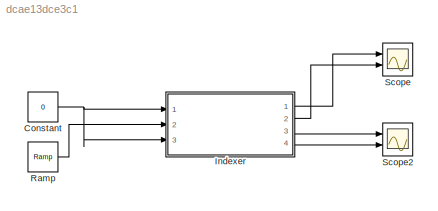
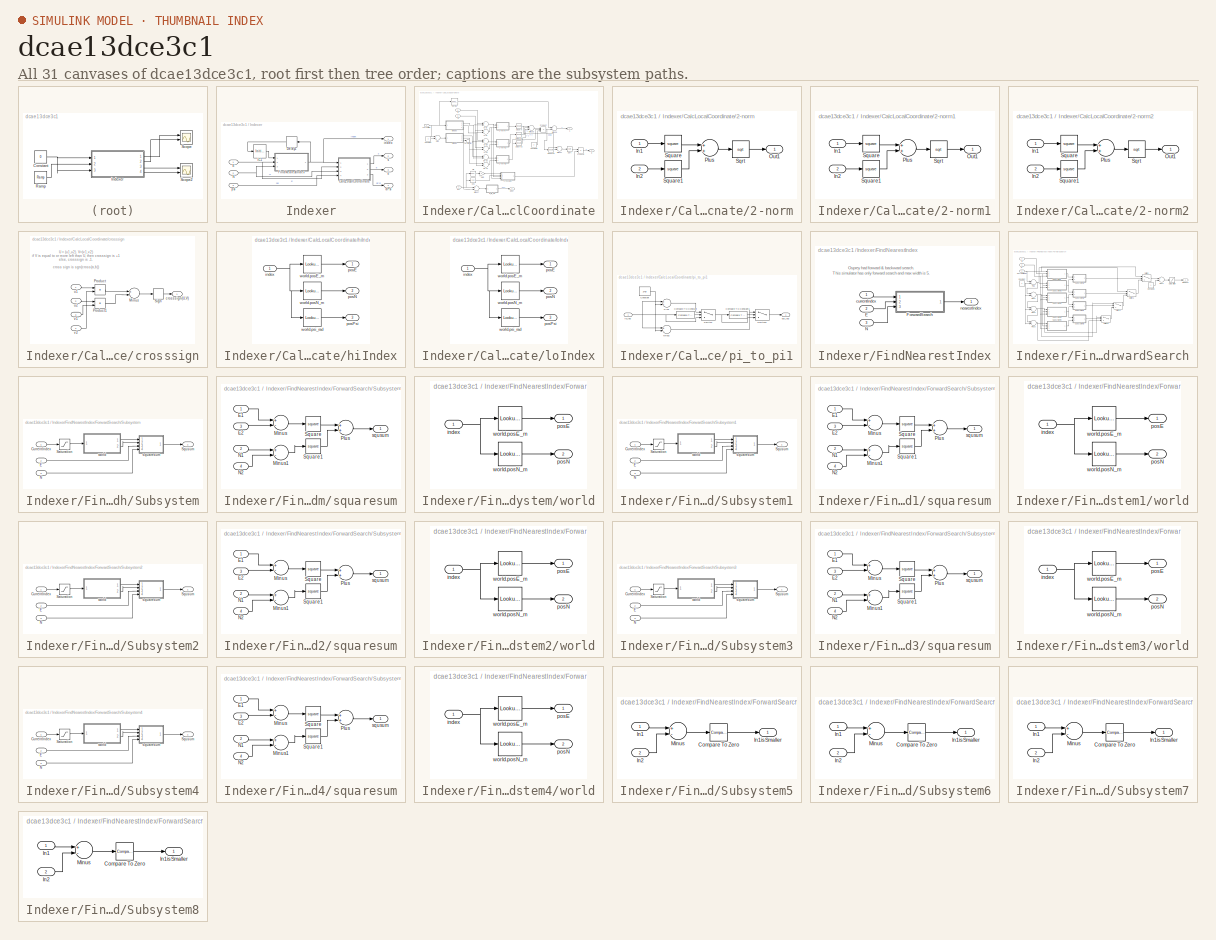
[diagram: thumbnail index - all 31 canvases of the model, root first then tree order]
MODEL slx_dcae13dce3c1
KIND model
CONFIG AbsTol = auto
CONFIG EnableMultiTasking = off
CONFIG FixedStep = 0.001
CONFIG MaxStep = auto
CONFIG MinStep = auto
CONFIG RelTol = 1e-3
CONFIG SampleTimeConstraint = Unconstrained
CONFIG Solver = ode1
CONFIG SolverName = ode1
CONFIG StartTime = 0.0
CONFIG StopTime = 10.0
BLOCK [Constant] Constant
  Value = 0
BLOCK [SubSystem] Indexer
  Ports = [3, 4]
  RequestExecContextInheritance = off
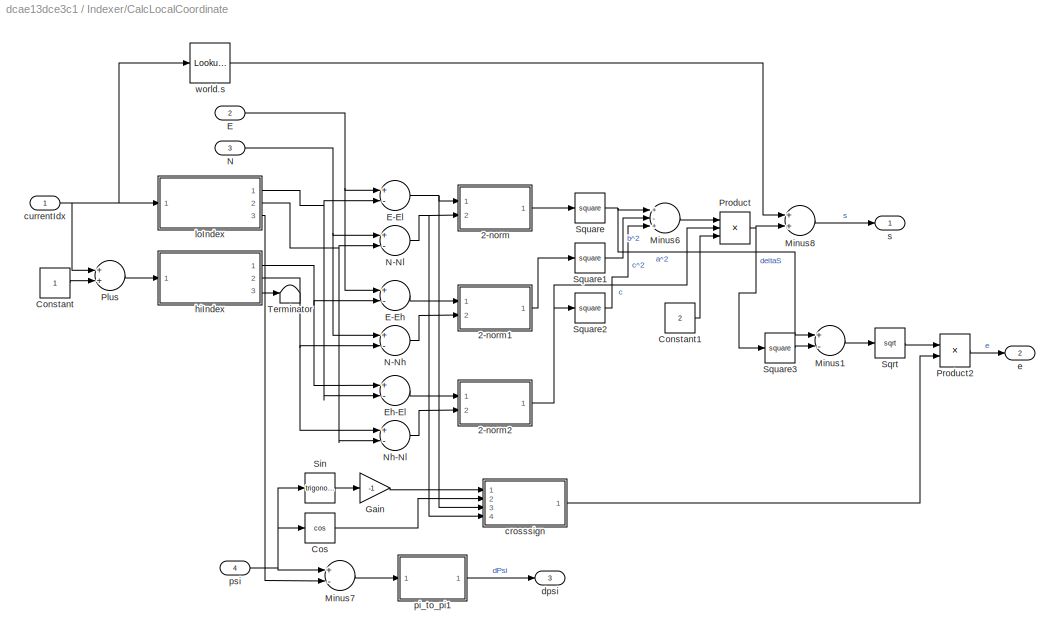
BLOCK [SubSystem] Indexer/CalcLocalCoordinate
  Ports = [4, 3]
  RequestExecContextInheritance = off
BLOCK [SubSystem] Indexer/CalcLocalCoordinate/2-norm
  Ports = [2, 1]
  RequestExecContextInheritance = off
BLOCK [Inport] Indexer/CalcLocalCoordinate/2-norm/In1
  IconDisplay = Port number
BLOCK [Inport] Indexer/CalcLocalCoordinate/2-norm/In2
  IconDisplay = Port number
  Port = 2
BLOCK [Outport] Indexer/CalcLocalCoordinate/2-norm/Out1
  IconDisplay = Port number
BLOCK [Sum] Indexer/CalcLocalCoordinate/2-norm/Plus
  InputSameDT = off
  OutDataTypeStr = Inherit: Inherit via internal rule
  Ports = [2, 1]
  SaturateOnIntegerOverflow = off
BLOCK [Sqrt] Indexer/CalcLocalCoordinate/2-norm/Sqrt
BLOCK [Math] Indexer/CalcLocalCoordinate/2-norm/Square
  Operator = square
  Ports = [1, 1]
BLOCK [Math] Indexer/CalcLocalCoordinate/2-norm/Square1
  Operator = square
  Ports = [1, 1]
BLOCK [SubSystem] Indexer/CalcLocalCoordinate/2-norm1
  Ports = [2, 1]
  RequestExecContextInheritance = off
BLOCK [Inport] Indexer/CalcLocalCoordinate/2-norm1/In1
  IconDisplay = Port number
BLOCK [Inport] Indexer/CalcLocalCoordinate/2-norm1/In2
  IconDisplay = Port number
  Port = 2
BLOCK [Outport] Indexer/CalcLocalCoordinate/2-norm1/Out1
  IconDisplay = Port number
BLOCK [Sum] Indexer/CalcLocalCoordinate/2-norm1/Plus
  InputSameDT = off
  OutDataTypeStr = Inherit: Inherit via internal rule
  Ports = [2, 1]
  SaturateOnIntegerOverflow = off
BLOCK [Sqrt] Indexer/CalcLocalCoordinate/2-norm1/Sqrt
BLOCK [Math] Indexer/CalcLocalCoordinate/2-norm1/Square
  Operator = square
  Ports = [1, 1]
BLOCK [Math] Indexer/CalcLocalCoordinate/2-norm1/Square1
  Operator = square
  Ports = [1, 1]
BLOCK [SubSystem] Indexer/CalcLocalCoordinate/2-norm2
  Ports = [2, 1]
  RequestExecContextInheritance = off
BLOCK [Inport] Indexer/CalcLocalCoordinate/2-norm2/In1
  IconDisplay = Port number
BLOCK [Inport] Indexer/CalcLocalCoordinate/2-norm2/In2
  IconDisplay = Port number
  Port = 2
BLOCK [Outport] Indexer/CalcLocalCoordinate/2-norm2/Out1
  IconDisplay = Port number
BLOCK [Sum] Indexer/CalcLocalCoordinate/2-norm2/Plus
  InputSameDT = off
  OutDataTypeStr = Inherit: Inherit via internal rule
  Ports = [2, 1]
  SaturateOnIntegerOverflow = off
BLOCK [Sqrt] Indexer/CalcLocalCoordinate/2-norm2/Sqrt
BLOCK [Math] Indexer/CalcLocalCoordinate/2-norm2/Square
  Operator = square
  Ports = [1, 1]
BLOCK [Math] Indexer/CalcLocalCoordinate/2-norm2/Square1
  Operator = square
  Ports = [1, 1]
BLOCK [Constant] Indexer/CalcLocalCoordinate/Constant
BLOCK [Constant] Indexer/CalcLocalCoordinate/Constant1
  Value = 2
BLOCK [Trigonometry] Indexer/CalcLocalCoordinate/Cos
  Operator = cos
  Ports = [1, 1]
BLOCK [Inport] Indexer/CalcLocalCoordinate/E
  IconDisplay = Port number
  Port = 2
BLOCK [Sum] Indexer/CalcLocalCoordinate/E-Eh
  InputSameDT = off
  Inputs = +-
  OutDataTypeStr = Inherit: Inherit via internal rule
  Ports = [2, 1]
  SaturateOnIntegerOverflow = off
BLOCK [Sum] Indexer/CalcLocalCoordinate/E-El
  InputSameDT = off
  Inputs = +-
  OutDataTypeStr = Inherit: Inherit via internal rule
  Ports = [2, 1]
  SaturateOnIntegerOverflow = off
BLOCK [Sum] Indexer/CalcLocalCoordinate/Eh-El
  InputSameDT = off
  Inputs = +-
  OutDataTypeStr = Inherit: Inherit via internal rule
  Ports = [2, 1]
  SaturateOnIntegerOverflow = off
BLOCK [Gain] Indexer/CalcLocalCoordinate/Gain
  Gain = -1
  OutDataTypeStr = Inherit: Inherit via internal rule
  ParamDataTypeStr = Inherit: Inherit via internal rule
  SaturateOnIntegerOverflow = off
BLOCK [Sum] Indexer/CalcLocalCoordinate/Minus1
  InputSameDT = off
  Inputs = +-
  OutDataTypeStr = Inherit: Inherit via internal rule
  Ports = [2, 1]
  SaturateOnIntegerOverflow = off
BLOCK [Sum] Indexer/CalcLocalCoordinate/Minus6
  InputSameDT = off
  Inputs = +-+
  OutDataTypeStr = Inherit: Inherit via internal rule
  Ports = [3, 1]
  SaturateOnIntegerOverflow = off
BLOCK [Sum] Indexer/CalcLocalCoordinate/Minus7
  InputSameDT = off
  Inputs = +-
  OutDataTypeStr = Inherit: Inherit via internal rule
  Ports = [2, 1]
  SaturateOnIntegerOverflow = off
BLOCK [Sum] Indexer/CalcLocalCoordinate/Minus8
  InputSameDT = off
  OutDataTypeStr = Inherit: Inherit via internal rule
  Ports = [2, 1]
  SaturateOnIntegerOverflow = off
BLOCK [Inport] Indexer/CalcLocalCoordinate/N
  IconDisplay = Port number
  Port = 3
BLOCK [Sum] Indexer/CalcLocalCoordinate/N-Nh
  InputSameDT = off
  Inputs = +-
  OutDataTypeStr = Inherit: Inherit via internal rule
  Ports = [2, 1]
  SaturateOnIntegerOverflow = off
BLOCK [Sum] Indexer/CalcLocalCoordinate/N-Nl
  InputSameDT = off
  Inputs = +-
  OutDataTypeStr = Inherit: Inherit via internal rule
  Ports = [2, 1]
  SaturateOnIntegerOverflow = off
BLOCK [Sum] Indexer/CalcLocalCoordinate/Nh-Nl
  InputSameDT = off
  Inputs = +-
  OutDataTypeStr = Inherit: Inherit via internal rule
  Ports = [2, 1]
  SaturateOnIntegerOverflow = off
BLOCK [Sum] Indexer/CalcLocalCoordinate/Plus
  InputSameDT = off
  OutDataTypeStr = Inherit: Inherit via internal rule
  Ports = [2, 1]
  SaturateOnIntegerOverflow = off
BLOCK [Product] Indexer/CalcLocalCoordinate/Product
  InputSameDT = off
  Inputs = *//
  OutDataTypeStr = Inherit: Inherit via internal rule
  Ports = [3, 1]
  RndMeth = Floor
  SaturateOnIntegerOverflow = off
BLOCK [Product] Indexer/CalcLocalCoordinate/Product2
  InputSameDT = off
  OutDataTypeStr = Inherit: Inherit via internal rule
  Ports = [2, 1]
  RndMeth = Floor
  SaturateOnIntegerOverflow = off
BLOCK [Trigonometry] Indexer/CalcLocalCoordinate/Sin
  Ports = [1, 1]
BLOCK [Sqrt] Indexer/CalcLocalCoordinate/Sqrt
BLOCK [Math] Indexer/CalcLocalCoordinate/Square
  Operator = square
  Ports = [1, 1]
BLOCK [Math] Indexer/CalcLocalCoordinate/Square1
  Operator = square
  Ports = [1, 1]
BLOCK [Math] Indexer/CalcLocalCoordinate/Square2
  Operator = square
  Ports = [1, 1]
BLOCK [Math] Indexer/CalcLocalCoordinate/Square3
  Operator = square
  Ports = [1, 1]
BLOCK [Terminator] Indexer/CalcLocalCoordinate/Terminator
BLOCK [SubSystem] Indexer/CalcLocalCoordinate/crosssign
  Ports = [4, 1]
  RequestExecContextInheritance = off
BLOCK [Sum] Indexer/CalcLocalCoordinate/crosssign/Minus
  InputSameDT = off
  Inputs = +-
  OutDataTypeStr = Inherit: Inherit via internal rule
  Ports = [2, 1]
  SaturateOnIntegerOverflow = off
BLOCK [Product] Indexer/CalcLocalCoordinate/crosssign/Product
  InputSameDT = off
  OutDataTypeStr = Inherit: Inherit via internal rule
  Ports = [2, 1]
  RndMeth = Floor
  SaturateOnIntegerOverflow = off
BLOCK [Product] Indexer/CalcLocalCoordinate/crosssign/Product1
  InputSameDT = off
  OutDataTypeStr = Inherit: Inherit via internal rule
  Ports = [2, 1]
  RndMeth = Floor
  SaturateOnIntegerOverflow = off
BLOCK [Signum] Indexer/CalcLocalCoordinate/crosssign/Sign
BLOCK [Outport] Indexer/CalcLocalCoordinate/crosssign/crosssign(U,V)
  IconDisplay = Port number
BLOCK [Inport] Indexer/CalcLocalCoordinate/crosssign/u1
  IconDisplay = Port number
BLOCK [Inport] Indexer/CalcLocalCoordinate/crosssign/u2
  IconDisplay = Port number
  Port = 2
BLOCK [Inport] Indexer/CalcLocalCoordinate/crosssign/v1
  IconDisplay = Port number
  Port = 3
BLOCK [Inport] Indexer/CalcLocalCoordinate/crosssign/v2
  IconDisplay = Port number
  Port = 4
BLOCK [Inport] Indexer/CalcLocalCoordinate/currentIdx
  IconDisplay = Port number
BLOCK [Outport] Indexer/CalcLocalCoordinate/dpsi
  IconDisplay = Port number
  Port = 3
BLOCK [Outport] Indexer/CalcLocalCoordinate/e
  IconDisplay = Port number
  Port = 2
BLOCK [SubSystem] Indexer/CalcLocalCoordinate/hiIndex
  Ports = [1, 3]
  RequestExecContextInheritance = off
BLOCK [Inport] Indexer/CalcLocalCoordinate/hiIndex/index
  IconDisplay = Port number
BLOCK [Outport] Indexer/CalcLocalCoordinate/hiIndex/posE
  IconDisplay = Port number
BLOCK [Outport] Indexer/CalcLocalCoordinate/hiIndex/posN
  IconDisplay = Port number
  Port = 2
BLOCK [Outport] Indexer/CalcLocalCoordinate/hiIndex/posPsi
  IconDisplay = Port number
  Port = 3
BLOCK [Lookup_n-D] Indexer/CalcLocalCoordinate/hiIndex/world.posE_m
  BreakpointsForDimension1 = world.index
  InternalRulePriority = Speed
  NumberOfTableDimensions = 1
  Ports = [1, 1]
  RndMeth = Simplest
  Table = world.posE_m
BLOCK [Lookup_n-D] Indexer/CalcLocalCoordinate/hiIndex/world.posN_m
  BreakpointsForDimension1 = world.index
  InternalRulePriority = Speed
  NumberOfTableDimensions = 1
  Ports = [1, 1]
  RndMeth = Simplest
  Table = world.posN_m
BLOCK [Lookup_n-D] Indexer/CalcLocalCoordinate/hiIndex/world.psi_rad
  BreakpointsForDimension1 = world.index
  InternalRulePriority = Speed
  NumberOfTableDimensions = 1
  Ports = [1, 1]
  RndMeth = Simplest
  Table = world.psi_rad
BLOCK [SubSystem] Indexer/CalcLocalCoordinate/loIndex
  Ports = [1, 3]
  RequestExecContextInheritance = off
BLOCK [Inport] Indexer/CalcLocalCoordinate/loIndex/index
  IconDisplay = Port number
BLOCK [Outport] Indexer/CalcLocalCoordinate/loIndex/posE
  IconDisplay = Port number
BLOCK [Outport] Indexer/CalcLocalCoordinate/loIndex/posN
  IconDisplay = Port number
  Port = 2
BLOCK [Outport] Indexer/CalcLocalCoordinate/loIndex/posPsi
  IconDisplay = Port number
  Port = 3
BLOCK [Lookup_n-D] Indexer/CalcLocalCoordinate/loIndex/world.posE_m
  BreakpointsForDimension1 = world.index
  InternalRulePriority = Speed
  NumberOfTableDimensions = 1
  Ports = [1, 1]
  RndMeth = Simplest
  Table = world.posE_m
BLOCK [Lookup_n-D] Indexer/CalcLocalCoordinate/loIndex/world.posN_m
  BreakpointsForDimension1 = world.index
  InternalRulePriority = Speed
  NumberOfTableDimensions = 1
  Ports = [1, 1]
  RndMeth = Simplest
  Table = world.posN_m
BLOCK [Lookup_n-D] Indexer/CalcLocalCoordinate/loIndex/world.psi_rad
  BreakpointsForDimension1 = world.index
  InternalRulePriority = Speed
  NumberOfTableDimensions = 1
  Ports = [1, 1]
  RndMeth = Simplest
  Table = world.psi_rad
BLOCK [SubSystem] Indexer/CalcLocalCoordinate/pi_to_pi1
  Ports = [1, 1]
  RequestExecContextInheritance = off
BLOCK [Reference] Indexer/CalcLocalCoordinate/pi_to_pi1/Compare To Constant  REF=simulink/Logic and Bit
Operations/Compare
To Constant
  Ports = [1, 1]
  SourceBlock = simulink/Logic and Bit\nOperations/Compare\nTo Constant
  SourceProductBaseCode = SL
  SourceProductName = Simulink
  SourceType = Compare To Constant
BLOCK [Reference] Indexer/CalcLocalCoordinate/pi_to_pi1/Compare To Constant1  REF=simulink/Logic and Bit
Operations/Compare
To Constant
  Ports = [1, 1]
  SourceBlock = simulink/Logic and Bit\nOperations/Compare\nTo Constant
  SourceProductBaseCode = SL
  SourceProductName = Simulink
  SourceType = Compare To Constant
BLOCK [Constant] Indexer/CalcLocalCoordinate/pi_to_pi1/Constant
  Value = 2*pi
BLOCK [Sum] Indexer/CalcLocalCoordinate/pi_to_pi1/Minus
  InputSameDT = off
  Inputs = +-
  OutDataTypeStr = Inherit: Inherit via internal rule
  Ports = [2, 1]
  SaturateOnIntegerOverflow = off
BLOCK [Sum] Indexer/CalcLocalCoordinate/pi_to_pi1/Plus
  InputSameDT = off
  OutDataTypeStr = Inherit: Inherit via internal rule
  Ports = [2, 1]
  SaturateOnIntegerOverflow = off
BLOCK [Switch] Indexer/CalcLocalCoordinate/pi_to_pi1/Switch
  Criteria = u2 > Threshold
  InputSameDT = off
  SaturateOnIntegerOverflow = off
BLOCK [Switch] Indexer/CalcLocalCoordinate/pi_to_pi1/Switch1
  Criteria = u2 > Threshold
  InputSameDT = off
  SaturateOnIntegerOverflow = off
BLOCK [Inport] Indexer/CalcLocalCoordinate/pi_to_pi1/in_rad
  IconDisplay = Port number
BLOCK [Outport] Indexer/CalcLocalCoordinate/pi_to_pi1/out_rad
  IconDisplay = Port number
BLOCK [Inport] Indexer/CalcLocalCoordinate/psi
  IconDisplay = Port number
  Port = 4
BLOCK [Outport] Indexer/CalcLocalCoordinate/s
  IconDisplay = Port number
BLOCK [Lookup_n-D] Indexer/CalcLocalCoordinate/world.s
  BreakpointsForDimension1 = world.index
  InternalRulePriority = Speed
  NumberOfTableDimensions = 1
  Ports = [1, 1]
  RndMeth = Simplest
  Table = world.s_m
BLOCK [Delay] Indexer/Delay1
  DelayLength = 1
  InputPortMap = u0
  Ports = [1, 1]
BLOCK [Inport] Indexer/E
  IconDisplay = Port number
BLOCK [SubSystem] Indexer/FindNearestIndex
  Ports = [3, 1]
  RequestExecContextInheritance = off
BLOCK [Inport] Indexer/FindNearestIndex/E
  IconDisplay = Port number
  Port = 2
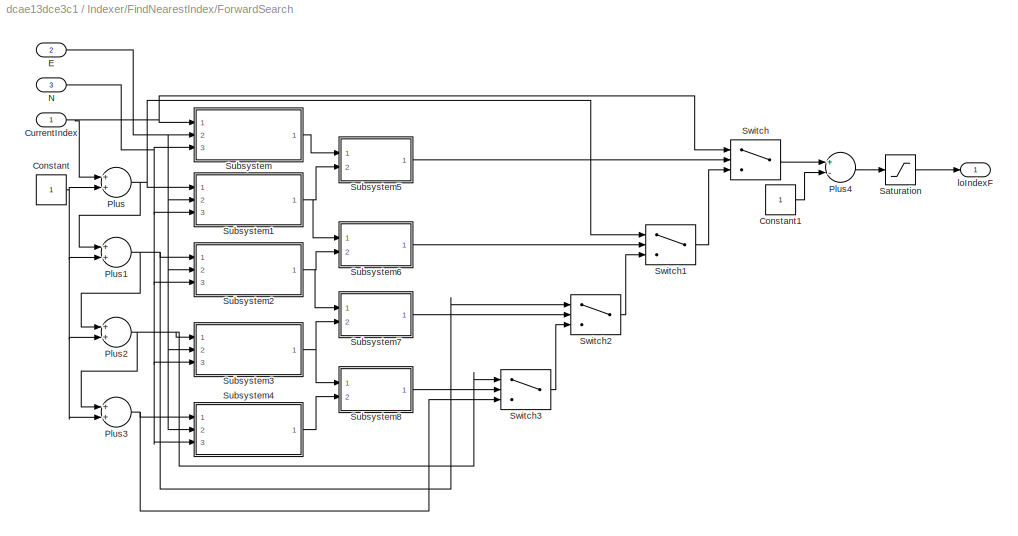
BLOCK [SubSystem] Indexer/FindNearestIndex/ForwardSearch
  Ports = [3, 1]
  RequestExecContextInheritance = off
  TreatAsAtomicUnit = on
BLOCK [Constant] Indexer/FindNearestIndex/ForwardSearch/Constant
BLOCK [Constant] Indexer/FindNearestIndex/ForwardSearch/Constant1
BLOCK [Inport] Indexer/FindNearestIndex/ForwardSearch/CurrentIndex
  IconDisplay = Port number
BLOCK [Inport] Indexer/FindNearestIndex/ForwardSearch/E
  IconDisplay = Port number
  Port = 2
BLOCK [Inport] Indexer/FindNearestIndex/ForwardSearch/N
  IconDisplay = Port number
  Port = 3
BLOCK [Sum] Indexer/FindNearestIndex/ForwardSearch/Plus
  InputSameDT = off
  OutDataTypeStr = Inherit: Inherit via internal rule
  Ports = [2, 1]
  SaturateOnIntegerOverflow = off
BLOCK [Sum] Indexer/FindNearestIndex/ForwardSearch/Plus1
  InputSameDT = off
  OutDataTypeStr = Inherit: Inherit via internal rule
  Ports = [2, 1]
  SaturateOnIntegerOverflow = off
BLOCK [Sum] Indexer/FindNearestIndex/ForwardSearch/Plus2
  InputSameDT = off
  OutDataTypeStr = Inherit: Inherit via internal rule
  Ports = [2, 1]
  SaturateOnIntegerOverflow = off
BLOCK [Sum] Indexer/FindNearestIndex/ForwardSearch/Plus3
  InputSameDT = off
  OutDataTypeStr = Inherit: Inherit via internal rule
  Ports = [2, 1]
  SaturateOnIntegerOverflow = off
BLOCK [Sum] Indexer/FindNearestIndex/ForwardSearch/Plus4
  InputSameDT = off
  Inputs = +-
  OutDataTypeStr = Inherit: Inherit via internal rule
  Ports = [2, 1]
  SaturateOnIntegerOverflow = off
BLOCK [Saturate] Indexer/FindNearestIndex/ForwardSearch/Saturation
  InputPortMap = u0
  LowerLimit = 1
  Ports = [1, 1]
  UpperLimit = world.maxIndex
BLOCK [SubSystem] Indexer/FindNearestIndex/ForwardSearch/Subsystem
  Ports = [3, 1]
  RequestExecContextInheritance = off
BLOCK [Inport] Indexer/FindNearestIndex/ForwardSearch/Subsystem/CurrentIndex
  IconDisplay = Port number
BLOCK [Inport] Indexer/FindNearestIndex/ForwardSearch/Subsystem/E
  IconDisplay = Port number
  Port = 2
BLOCK [Inport] Indexer/FindNearestIndex/ForwardSearch/Subsystem/N
  IconDisplay = Port number
  Port = 3
BLOCK [Saturate] Indexer/FindNearestIndex/ForwardSearch/Subsystem/Saturation
  InputPortMap = u0
  LowerLimit = 1
  Ports = [1, 1]
  UpperLimit = world.maxIndex
BLOCK [Outport] Indexer/FindNearestIndex/ForwardSearch/Subsystem/Squsum
  IconDisplay = Port number
BLOCK [SubSystem] Indexer/FindNearestIndex/ForwardSearch/Subsystem/squaresum
  Ports = [4, 1]
  RequestExecContextInheritance = off
BLOCK [Inport] Indexer/FindNearestIndex/ForwardSearch/Subsystem/squaresum/E1
  IconDisplay = Port number
BLOCK [Inport] Indexer/FindNearestIndex/ForwardSearch/Subsystem/squaresum/E2
  IconDisplay = Port number
  Port = 3
BLOCK [Sum] Indexer/FindNearestIndex/ForwardSearch/Subsystem/squaresum/Minus
  InputSameDT = off
  Inputs = +-
  OutDataTypeStr = Inherit: Inherit via internal rule
  Ports = [2, 1]
  SaturateOnIntegerOverflow = off
BLOCK [Sum] Indexer/FindNearestIndex/ForwardSearch/Subsystem/squaresum/Minus1
  InputSameDT = off
  Inputs = +-
  OutDataTypeStr = Inherit: Inherit via internal rule
  Ports = [2, 1]
  SaturateOnIntegerOverflow = off
BLOCK [Inport] Indexer/FindNearestIndex/ForwardSearch/Subsystem/squaresum/N1
  IconDisplay = Port number
  Port = 2
BLOCK [Inport] Indexer/FindNearestIndex/ForwardSearch/Subsystem/squaresum/N2
  IconDisplay = Port number
  Port = 4
BLOCK [Sum] Indexer/FindNearestIndex/ForwardSearch/Subsystem/squaresum/Plus
  InputSameDT = off
  OutDataTypeStr = Inherit: Inherit via internal rule
  Ports = [2, 1]
  SaturateOnIntegerOverflow = off
BLOCK [Math] Indexer/FindNearestIndex/ForwardSearch/Subsystem/squaresum/Square
  Operator = square
  Ports = [1, 1]
BLOCK [Math] Indexer/FindNearestIndex/ForwardSearch/Subsystem/squaresum/Square1
  Operator = square
  Ports = [1, 1]
BLOCK [Outport] Indexer/FindNearestIndex/ForwardSearch/Subsystem/squaresum/squsum
  IconDisplay = Port number
BLOCK [SubSystem] Indexer/FindNearestIndex/ForwardSearch/Subsystem/world
  Ports = [1, 2]
  RequestExecContextInheritance = off
BLOCK [Inport] Indexer/FindNearestIndex/ForwardSearch/Subsystem/world/index
  IconDisplay = Port number
BLOCK [Outport] Indexer/FindNearestIndex/ForwardSearch/Subsystem/world/posE
  IconDisplay = Port number
BLOCK [Outport] Indexer/FindNearestIndex/ForwardSearch/Subsystem/world/posN
  IconDisplay = Port number
  Port = 2
BLOCK [Lookup_n-D] Indexer/FindNearestIndex/ForwardSearch/Subsystem/world/world.posE_m
  BreakpointsForDimension1 = world.index
  InternalRulePriority = Speed
  NumberOfTableDimensions = 1
  Ports = [1, 1]
  RndMeth = Simplest
  Table = world.posE_m
BLOCK [Lookup_n-D] Indexer/FindNearestIndex/ForwardSearch/Subsystem/world/world.posN_m
  BreakpointsForDimension1 = world.index
  InternalRulePriority = Speed
  NumberOfTableDimensions = 1
  Ports = [1, 1]
  RndMeth = Simplest
  Table = world.posN_m
BLOCK [SubSystem] Indexer/FindNearestIndex/ForwardSearch/Subsystem1
  Ports = [3, 1]
  RequestExecContextInheritance = off
BLOCK [Inport] Indexer/FindNearestIndex/ForwardSearch/Subsystem1/CurrentIndex
  IconDisplay = Port number
BLOCK [Inport] Indexer/FindNearestIndex/ForwardSearch/Subsystem1/E
  IconDisplay = Port number
  Port = 2
BLOCK [Inport] Indexer/FindNearestIndex/ForwardSearch/Subsystem1/N
  IconDisplay = Port number
  Port = 3
BLOCK [Saturate] Indexer/FindNearestIndex/ForwardSearch/Subsystem1/Saturation
  InputPortMap = u0
  LowerLimit = 1
  Ports = [1, 1]
  UpperLimit = world.maxIndex
BLOCK [Outport] Indexer/FindNearestIndex/ForwardSearch/Subsystem1/Squsum
  IconDisplay = Port number
BLOCK [SubSystem] Indexer/FindNearestIndex/ForwardSearch/Subsystem1/squaresum
  Ports = [4, 1]
  RequestExecContextInheritance = off
BLOCK [Inport] Indexer/FindNearestIndex/ForwardSearch/Subsystem1/squaresum/E1
  IconDisplay = Port number
BLOCK [Inport] Indexer/FindNearestIndex/ForwardSearch/Subsystem1/squaresum/E2
  IconDisplay = Port number
  Port = 3
BLOCK [Sum] Indexer/FindNearestIndex/ForwardSearch/Subsystem1/squaresum/Minus
  InputSameDT = off
  Inputs = +-
  OutDataTypeStr = Inherit: Inherit via internal rule
  Ports = [2, 1]
  SaturateOnIntegerOverflow = off
BLOCK [Sum] Indexer/FindNearestIndex/ForwardSearch/Subsystem1/squaresum/Minus1
  InputSameDT = off
  Inputs = +-
  OutDataTypeStr = Inherit: Inherit via internal rule
  Ports = [2, 1]
  SaturateOnIntegerOverflow = off
BLOCK [Inport] Indexer/FindNearestIndex/ForwardSearch/Subsystem1/squaresum/N1
  IconDisplay = Port number
  Port = 2
BLOCK [Inport] Indexer/FindNearestIndex/ForwardSearch/Subsystem1/squaresum/N2
  IconDisplay = Port number
  Port = 4
BLOCK [Sum] Indexer/FindNearestIndex/ForwardSearch/Subsystem1/squaresum/Plus
  InputSameDT = off
  OutDataTypeStr = Inherit: Inherit via internal rule
  Ports = [2, 1]
  SaturateOnIntegerOverflow = off
BLOCK [Math] Indexer/FindNearestIndex/ForwardSearch/Subsystem1/squaresum/Square
  Operator = square
  Ports = [1, 1]
BLOCK [Math] Indexer/FindNearestIndex/ForwardSearch/Subsystem1/squaresum/Square1
  Operator = square
  Ports = [1, 1]
BLOCK [Outport] Indexer/FindNearestIndex/ForwardSearch/Subsystem1/squaresum/squsum
  IconDisplay = Port number
BLOCK [SubSystem] Indexer/FindNearestIndex/ForwardSearch/Subsystem1/world
  Ports = [1, 2]
  RequestExecContextInheritance = off
BLOCK [Inport] Indexer/FindNearestIndex/ForwardSearch/Subsystem1/world/index
  IconDisplay = Port number
BLOCK [Outport] Indexer/FindNearestIndex/ForwardSearch/Subsystem1/world/posE
  IconDisplay = Port number
BLOCK [Outport] Indexer/FindNearestIndex/ForwardSearch/Subsystem1/world/posN
  IconDisplay = Port number
  Port = 2
BLOCK [Lookup_n-D] Indexer/FindNearestIndex/ForwardSearch/Subsystem1/world/world.posE_m
  BreakpointsForDimension1 = world.index
  InternalRulePriority = Speed
  NumberOfTableDimensions = 1
  Ports = [1, 1]
  RndMeth = Simplest
  Table = world.posE_m
BLOCK [Lookup_n-D] Indexer/FindNearestIndex/ForwardSearch/Subsystem1/world/world.posN_m
  BreakpointsForDimension1 = world.index
  InternalRulePriority = Speed
  NumberOfTableDimensions = 1
  Ports = [1, 1]
  RndMeth = Simplest
  Table = world.posN_m
BLOCK [SubSystem] Indexer/FindNearestIndex/ForwardSearch/Subsystem2
  Ports = [3, 1]
  RequestExecContextInheritance = off
BLOCK [Inport] Indexer/FindNearestIndex/ForwardSearch/Subsystem2/CurrentIndex
  IconDisplay = Port number
BLOCK [Inport] Indexer/FindNearestIndex/ForwardSearch/Subsystem2/E
  IconDisplay = Port number
  Port = 2
BLOCK [Inport] Indexer/FindNearestIndex/ForwardSearch/Subsystem2/N
  IconDisplay = Port number
  Port = 3
BLOCK [Saturate] Indexer/FindNearestIndex/ForwardSearch/Subsystem2/Saturation
  InputPortMap = u0
  LowerLimit = 1
  Ports = [1, 1]
  UpperLimit = world.maxIndex
BLOCK [Outport] Indexer/FindNearestIndex/ForwardSearch/Subsystem2/Squsum
  IconDisplay = Port number
BLOCK [SubSystem] Indexer/FindNearestIndex/ForwardSearch/Subsystem2/squaresum
  Ports = [4, 1]
  RequestExecContextInheritance = off
BLOCK [Inport] Indexer/FindNearestIndex/ForwardSearch/Subsystem2/squaresum/E1
  IconDisplay = Port number
BLOCK [Inport] Indexer/FindNearestIndex/ForwardSearch/Subsystem2/squaresum/E2
  IconDisplay = Port number
  Port = 3
BLOCK [Sum] Indexer/FindNearestIndex/ForwardSearch/Subsystem2/squaresum/Minus
  InputSameDT = off
  Inputs = +-
  OutDataTypeStr = Inherit: Inherit via internal rule
  Ports = [2, 1]
  SaturateOnIntegerOverflow = off
BLOCK [Sum] Indexer/FindNearestIndex/ForwardSearch/Subsystem2/squaresum/Minus1
  InputSameDT = off
  Inputs = +-
  OutDataTypeStr = Inherit: Inherit via internal rule
  Ports = [2, 1]
  SaturateOnIntegerOverflow = off
BLOCK [Inport] Indexer/FindNearestIndex/ForwardSearch/Subsystem2/squaresum/N1
  IconDisplay = Port number
  Port = 2
BLOCK [Inport] Indexer/FindNearestIndex/ForwardSearch/Subsystem2/squaresum/N2
  IconDisplay = Port number
  Port = 4
BLOCK [Sum] Indexer/FindNearestIndex/ForwardSearch/Subsystem2/squaresum/Plus
  InputSameDT = off
  OutDataTypeStr = Inherit: Inherit via internal rule
  Ports = [2, 1]
  SaturateOnIntegerOverflow = off
BLOCK [Math] Indexer/FindNearestIndex/ForwardSearch/Subsystem2/squaresum/Square
  Operator = square
  Ports = [1, 1]
BLOCK [Math] Indexer/FindNearestIndex/ForwardSearch/Subsystem2/squaresum/Square1
  Operator = square
  Ports = [1, 1]
BLOCK [Outport] Indexer/FindNearestIndex/ForwardSearch/Subsystem2/squaresum/squsum
  IconDisplay = Port number
BLOCK [SubSystem] Indexer/FindNearestIndex/ForwardSearch/Subsystem2/world
  Ports = [1, 2]
  RequestExecContextInheritance = off
BLOCK [Inport] Indexer/FindNearestIndex/ForwardSearch/Subsystem2/world/index
  IconDisplay = Port number
BLOCK [Outport] Indexer/FindNearestIndex/ForwardSearch/Subsystem2/world/posE
  IconDisplay = Port number
BLOCK [Outport] Indexer/FindNearestIndex/ForwardSearch/Subsystem2/world/posN
  IconDisplay = Port number
  Port = 2
BLOCK [Lookup_n-D] Indexer/FindNearestIndex/ForwardSearch/Subsystem2/world/world.posE_m
  BreakpointsForDimension1 = world.index
  InternalRulePriority = Speed
  NumberOfTableDimensions = 1
  Ports = [1, 1]
  RndMeth = Simplest
  Table = world.posE_m
BLOCK [Lookup_n-D] Indexer/FindNearestIndex/ForwardSearch/Subsystem2/world/world.posN_m
  BreakpointsForDimension1 = world.index
  InternalRulePriority = Speed
  NumberOfTableDimensions = 1
  Ports = [1, 1]
  RndMeth = Simplest
  Table = world.posN_m
BLOCK [SubSystem] Indexer/FindNearestIndex/ForwardSearch/Subsystem3
  Ports = [3, 1]
  RequestExecContextInheritance = off
BLOCK [Inport] Indexer/FindNearestIndex/ForwardSearch/Subsystem3/CurrentIndex
  IconDisplay = Port number
BLOCK [Inport] Indexer/FindNearestIndex/ForwardSearch/Subsystem3/E
  IconDisplay = Port number
  Port = 2
BLOCK [Inport] Indexer/FindNearestIndex/ForwardSearch/Subsystem3/N
  IconDisplay = Port number
  Port = 3
BLOCK [Saturate] Indexer/FindNearestIndex/ForwardSearch/Subsystem3/Saturation
  InputPortMap = u0
  LowerLimit = 1
  Ports = [1, 1]
  UpperLimit = world.maxIndex
BLOCK [Outport] Indexer/FindNearestIndex/ForwardSearch/Subsystem3/Squsum
  IconDisplay = Port number
BLOCK [SubSystem] Indexer/FindNearestIndex/ForwardSearch/Subsystem3/squaresum
  Ports = [4, 1]
  RequestExecContextInheritance = off
BLOCK [Inport] Indexer/FindNearestIndex/ForwardSearch/Subsystem3/squaresum/E1
  IconDisplay = Port number
BLOCK [Inport] Indexer/FindNearestIndex/ForwardSearch/Subsystem3/squaresum/E2
  IconDisplay = Port number
  Port = 3
BLOCK [Sum] Indexer/FindNearestIndex/ForwardSearch/Subsystem3/squaresum/Minus
  InputSameDT = off
  Inputs = +-
  OutDataTypeStr = Inherit: Inherit via internal rule
  Ports = [2, 1]
  SaturateOnIntegerOverflow = off
BLOCK [Sum] Indexer/FindNearestIndex/ForwardSearch/Subsystem3/squaresum/Minus1
  InputSameDT = off
  Inputs = +-
  OutDataTypeStr = Inherit: Inherit via internal rule
  Ports = [2, 1]
  SaturateOnIntegerOverflow = off
BLOCK [Inport] Indexer/FindNearestIndex/ForwardSearch/Subsystem3/squaresum/N1
  IconDisplay = Port number
  Port = 2
BLOCK [Inport] Indexer/FindNearestIndex/ForwardSearch/Subsystem3/squaresum/N2
  IconDisplay = Port number
  Port = 4
BLOCK [Sum] Indexer/FindNearestIndex/ForwardSearch/Subsystem3/squaresum/Plus
  InputSameDT = off
  OutDataTypeStr = Inherit: Inherit via internal rule
  Ports = [2, 1]
  SaturateOnIntegerOverflow = off
BLOCK [Math] Indexer/FindNearestIndex/ForwardSearch/Subsystem3/squaresum/Square
  Operator = square
  Ports = [1, 1]
BLOCK [Math] Indexer/FindNearestIndex/ForwardSearch/Subsystem3/squaresum/Square1
  Operator = square
  Ports = [1, 1]
BLOCK [Outport] Indexer/FindNearestIndex/ForwardSearch/Subsystem3/squaresum/squsum
  IconDisplay = Port number
BLOCK [SubSystem] Indexer/FindNearestIndex/ForwardSearch/Subsystem3/world
  Ports = [1, 2]
  RequestExecContextInheritance = off
BLOCK [Inport] Indexer/FindNearestIndex/ForwardSearch/Subsystem3/world/index
  IconDisplay = Port number
BLOCK [Outport] Indexer/FindNearestIndex/ForwardSearch/Subsystem3/world/posE
  IconDisplay = Port number
BLOCK [Outport] Indexer/FindNearestIndex/ForwardSearch/Subsystem3/world/posN
  IconDisplay = Port number
  Port = 2
BLOCK [Lookup_n-D] Indexer/FindNearestIndex/ForwardSearch/Subsystem3/world/world.posE_m
  BreakpointsForDimension1 = world.index
  InternalRulePriority = Speed
  NumberOfTableDimensions = 1
  Ports = [1, 1]
  RndMeth = Simplest
  Table = world.posE_m
BLOCK [Lookup_n-D] Indexer/FindNearestIndex/ForwardSearch/Subsystem3/world/world.posN_m
  BreakpointsForDimension1 = world.index
  InternalRulePriority = Speed
  NumberOfTableDimensions = 1
  Ports = [1, 1]
  RndMeth = Simplest
  Table = world.posN_m
BLOCK [SubSystem] Indexer/FindNearestIndex/ForwardSearch/Subsystem4
  Ports = [3, 1]
  RequestExecContextInheritance = off
BLOCK [Inport] Indexer/FindNearestIndex/ForwardSearch/Subsystem4/CurrentIndex
  IconDisplay = Port number
BLOCK [Inport] Indexer/FindNearestIndex/ForwardSearch/Subsystem4/E
  IconDisplay = Port number
  Port = 2
BLOCK [Inport] Indexer/FindNearestIndex/ForwardSearch/Subsystem4/N
  IconDisplay = Port number
  Port = 3
BLOCK [Saturate] Indexer/FindNearestIndex/ForwardSearch/Subsystem4/Saturation
  InputPortMap = u0
  LowerLimit = 1
  Ports = [1, 1]
  UpperLimit = world.maxIndex
BLOCK [Outport] Indexer/FindNearestIndex/ForwardSearch/Subsystem4/Squsum
  IconDisplay = Port number
BLOCK [SubSystem] Indexer/FindNearestIndex/ForwardSearch/Subsystem4/squaresum
  Ports = [4, 1]
  RequestExecContextInheritance = off
BLOCK [Inport] Indexer/FindNearestIndex/ForwardSearch/Subsystem4/squaresum/E1
  IconDisplay = Port number
BLOCK [Inport] Indexer/FindNearestIndex/ForwardSearch/Subsystem4/squaresum/E2
  IconDisplay = Port number
  Port = 3
BLOCK [Sum] Indexer/FindNearestIndex/ForwardSearch/Subsystem4/squaresum/Minus
  InputSameDT = off
  Inputs = +-
  OutDataTypeStr = Inherit: Inherit via internal rule
  Ports = [2, 1]
  SaturateOnIntegerOverflow = off
BLOCK [Sum] Indexer/FindNearestIndex/ForwardSearch/Subsystem4/squaresum/Minus1
  InputSameDT = off
  Inputs = +-
  OutDataTypeStr = Inherit: Inherit via internal rule
  Ports = [2, 1]
  SaturateOnIntegerOverflow = off
BLOCK [Inport] Indexer/FindNearestIndex/ForwardSearch/Subsystem4/squaresum/N1
  IconDisplay = Port number
  Port = 2
BLOCK [Inport] Indexer/FindNearestIndex/ForwardSearch/Subsystem4/squaresum/N2
  IconDisplay = Port number
  Port = 4
BLOCK [Sum] Indexer/FindNearestIndex/ForwardSearch/Subsystem4/squaresum/Plus
  InputSameDT = off
  OutDataTypeStr = Inherit: Inherit via internal rule
  Ports = [2, 1]
  SaturateOnIntegerOverflow = off
BLOCK [Math] Indexer/FindNearestIndex/ForwardSearch/Subsystem4/squaresum/Square
  Operator = square
  Ports = [1, 1]
BLOCK [Math] Indexer/FindNearestIndex/ForwardSearch/Subsystem4/squaresum/Square1
  Operator = square
  Ports = [1, 1]
BLOCK [Outport] Indexer/FindNearestIndex/ForwardSearch/Subsystem4/squaresum/squsum
  IconDisplay = Port number
BLOCK [SubSystem] Indexer/FindNearestIndex/ForwardSearch/Subsystem4/world
  Ports = [1, 2]
  RequestExecContextInheritance = off
BLOCK [Inport] Indexer/FindNearestIndex/ForwardSearch/Subsystem4/world/index
  IconDisplay = Port number
BLOCK [Outport] Indexer/FindNearestIndex/ForwardSearch/Subsystem4/world/posE
  IconDisplay = Port number
BLOCK [Outport] Indexer/FindNearestIndex/ForwardSearch/Subsystem4/world/posN
  IconDisplay = Port number
  Port = 2
BLOCK [Lookup_n-D] Indexer/FindNearestIndex/ForwardSearch/Subsystem4/world/world.posE_m
  BreakpointsForDimension1 = world.index
  InternalRulePriority = Speed
  NumberOfTableDimensions = 1
  Ports = [1, 1]
  RndMeth = Simplest
  Table = world.posE_m
BLOCK [Lookup_n-D] Indexer/FindNearestIndex/ForwardSearch/Subsystem4/world/world.posN_m
  BreakpointsForDimension1 = world.index
  InternalRulePriority = Speed
  NumberOfTableDimensions = 1
  Ports = [1, 1]
  RndMeth = Simplest
  Table = world.posN_m
BLOCK [SubSystem] Indexer/FindNearestIndex/ForwardSearch/Subsystem5
  Ports = [2, 1]
  RequestExecContextInheritance = off
BLOCK [Reference] Indexer/FindNearestIndex/ForwardSearch/Subsystem5/Compare To Zero  REF=simulink/Logic and Bit
Operations/Compare
To Zero
  Ports = [1, 1]
  SourceBlock = simulink/Logic and Bit\nOperations/Compare\nTo Zero
  SourceProductBaseCode = SL
  SourceProductName = Simulink
  SourceType = Compare To Zero
BLOCK [Inport] Indexer/FindNearestIndex/ForwardSearch/Subsystem5/In1
  IconDisplay = Port number
BLOCK [Outport] Indexer/FindNearestIndex/ForwardSearch/Subsystem5/In1isSmaller
  IconDisplay = Port number
BLOCK [Inport] Indexer/FindNearestIndex/ForwardSearch/Subsystem5/In2
  IconDisplay = Port number
  Port = 2
BLOCK [Sum] Indexer/FindNearestIndex/ForwardSearch/Subsystem5/Minus
  InputSameDT = off
  Inputs = +-
  OutDataTypeStr = Inherit: Inherit via internal rule
  Ports = [2, 1]
  SaturateOnIntegerOverflow = off
BLOCK [SubSystem] Indexer/FindNearestIndex/ForwardSearch/Subsystem6
  Ports = [2, 1]
  RequestExecContextInheritance = off
BLOCK [Reference] Indexer/FindNearestIndex/ForwardSearch/Subsystem6/Compare To Zero  REF=simulink/Logic and Bit
Operations/Compare
To Zero
  Ports = [1, 1]
  SourceBlock = simulink/Logic and Bit\nOperations/Compare\nTo Zero
  SourceProductBaseCode = SL
  SourceProductName = Simulink
  SourceType = Compare To Zero
BLOCK [Inport] Indexer/FindNearestIndex/ForwardSearch/Subsystem6/In1
  IconDisplay = Port number
BLOCK [Outport] Indexer/FindNearestIndex/ForwardSearch/Subsystem6/In1isSmaller
  IconDisplay = Port number
BLOCK [Inport] Indexer/FindNearestIndex/ForwardSearch/Subsystem6/In2
  IconDisplay = Port number
  Port = 2
BLOCK [Sum] Indexer/FindNearestIndex/ForwardSearch/Subsystem6/Minus
  InputSameDT = off
  Inputs = +-
  OutDataTypeStr = Inherit: Inherit via internal rule
  Ports = [2, 1]
  SaturateOnIntegerOverflow = off
BLOCK [SubSystem] Indexer/FindNearestIndex/ForwardSearch/Subsystem7
  Ports = [2, 1]
  RequestExecContextInheritance = off
BLOCK [Reference] Indexer/FindNearestIndex/ForwardSearch/Subsystem7/Compare To Zero  REF=simulink/Logic and Bit
Operations/Compare
To Zero
  Ports = [1, 1]
  SourceBlock = simulink/Logic and Bit\nOperations/Compare\nTo Zero
  SourceProductBaseCode = SL
  SourceProductName = Simulink
  SourceType = Compare To Zero
BLOCK [Inport] Indexer/FindNearestIndex/ForwardSearch/Subsystem7/In1
  IconDisplay = Port number
BLOCK [Outport] Indexer/FindNearestIndex/ForwardSearch/Subsystem7/In1isSmaller
  IconDisplay = Port number
BLOCK [Inport] Indexer/FindNearestIndex/ForwardSearch/Subsystem7/In2
  IconDisplay = Port number
  Port = 2
BLOCK [Sum] Indexer/FindNearestIndex/ForwardSearch/Subsystem7/Minus
  InputSameDT = off
  Inputs = +-
  OutDataTypeStr = Inherit: Inherit via internal rule
  Ports = [2, 1]
  SaturateOnIntegerOverflow = off
BLOCK [SubSystem] Indexer/FindNearestIndex/ForwardSearch/Subsystem8
  Ports = [2, 1]
  RequestExecContextInheritance = off
BLOCK [Reference] Indexer/FindNearestIndex/ForwardSearch/Subsystem8/Compare To Zero  REF=simulink/Logic and Bit
Operations/Compare
To Zero
  Ports = [1, 1]
  SourceBlock = simulink/Logic and Bit\nOperations/Compare\nTo Zero
  SourceProductBaseCode = SL
  SourceProductName = Simulink
  SourceType = Compare To Zero
BLOCK [Inport] Indexer/FindNearestIndex/ForwardSearch/Subsystem8/In1
  IconDisplay = Port number
BLOCK [Outport] Indexer/FindNearestIndex/ForwardSearch/Subsystem8/In1isSmaller
  IconDisplay = Port number
BLOCK [Inport] Indexer/FindNearestIndex/ForwardSearch/Subsystem8/In2
  IconDisplay = Port number
  Port = 2
BLOCK [Sum] Indexer/FindNearestIndex/ForwardSearch/Subsystem8/Minus
  InputSameDT = off
  Inputs = +-
  OutDataTypeStr = Inherit: Inherit via internal rule
  Ports = [2, 1]
  SaturateOnIntegerOverflow = off
BLOCK [Switch] Indexer/FindNearestIndex/ForwardSearch/Switch
  Criteria = u2 > Threshold
  InputSameDT = off
  SaturateOnIntegerOverflow = off
BLOCK [Switch] Indexer/FindNearestIndex/ForwardSearch/Switch1
  Criteria = u2 > Threshold
  InputSameDT = off
  SaturateOnIntegerOverflow = off
BLOCK [Switch] Indexer/FindNearestIndex/ForwardSearch/Switch2
  Criteria = u2 > Threshold
  InputSameDT = off
  SaturateOnIntegerOverflow = off
BLOCK [Switch] Indexer/FindNearestIndex/ForwardSearch/Switch3
  Criteria = u2 > Threshold
  InputSameDT = off
  SaturateOnIntegerOverflow = off
BLOCK [Outport] Indexer/FindNearestIndex/ForwardSearch/loIndexF
  IconDisplay = Port number
BLOCK [Inport] Indexer/FindNearestIndex/N
  IconDisplay = Port number
  Port = 3
BLOCK [Inport] Indexer/FindNearestIndex/currentIndex
  IconDisplay = Port number
BLOCK [Outport] Indexer/FindNearestIndex/nearestIndex
  IconDisplay = Port number
BLOCK [InitialCondition] Indexer/IC1
BLOCK [Inport] Indexer/N
  IconDisplay = Port number
  Port = 2
BLOCK [Outport] Indexer/dPsi
  IconDisplay = Port number
  Port = 4
BLOCK [Outport] Indexer/e
  IconDisplay = Port number
  Port = 3
BLOCK [Outport] Indexer/index
  IconDisplay = Port number
BLOCK [Inport] Indexer/psi
  IconDisplay = Port number
  Port = 3
BLOCK [Outport] Indexer/s
  IconDisplay = Port number
  Port = 2
BLOCK [Reference] Ramp  REF=simulink/Sources/Ramp
  Ports = [0, 1]
  SourceBlock = simulink/Sources/Ramp
  SourceProductBaseCode = SL
  SourceProductName = Simulink
  SourceType = Ramp
BLOCK [Scope] Scope
  Floating = off
  NumInputPorts = 2
  Ports = [2]
  ScopeSpecificationString = Simulink.scopes.TimeScopeBlockCfg('CurrentConfiguration', extmgr.ConfigurationSet(extmgr.Configuration('Core','General UI',true),extmgr.Configuration('Core','Source UI',true),extmgr.Configuration('Sources','WiredSimulink',true),extmgr.Configuration('Visuals','Time Domain',true,'SerializedDisplays',{struct('MinYLimReal','-65.875','MaxYLimReal','592.875','YLabelReal','','MinYLimMag','0.00000','MaxYL...<+1396ch>
BLOCK [Scope] Scope2
  Floating = off
  NumInputPorts = 2
  Ports = [2]
  ScopeSpecificationString = Simulink.scopes.TimeScopeBlockCfg('CurrentConfiguration', extmgr.ConfigurationSet(extmgr.Configuration('Core','General UI',true),extmgr.Configuration('Core','Source UI',true),extmgr.Configuration('Sources','WiredSimulink',true,'DataLoggingVariableName','ScopeData2'),extmgr.Configuration('Visuals','Time Domain',true,'SerializedDisplays',{struct('MinYLimReal','-66.3803','MaxYLimReal','7.37559','YLab...<+1410ch>
ANNOTATION Indexer/CalcLocalCoordinate/crosssign: U = (u1,u2), V=(v1,v2) if V is equal to or more left than U, then crosssign is +1 else, crosssign is -1. cross sign is sgn(cross(a,b))
ANNOTATION Indexer/FindNearestIndex: Osprey had forward & backward search. This simulator has only forward search and max width is 5.
NET Constant:1 -> Indexer:1, Indexer:3
LINE Indexer/CalcLocalCoordinate/2-norm/In1:1 -> Indexer/CalcLocalCoordinate/2-norm/Square:1
LINE Indexer/CalcLocalCoordinate/2-norm/In2:1 -> Indexer/CalcLocalCoordinate/2-norm/Square1:1
LINE Indexer/CalcLocalCoordinate/2-norm/Plus:1 -> Indexer/CalcLocalCoordinate/2-norm/Sqrt:1
LINE Indexer/CalcLocalCoordinate/2-norm/Sqrt:1 -> Indexer/CalcLocalCoordinate/2-norm/Out1:1
LINE Indexer/CalcLocalCoordinate/2-norm/Square1:1 -> Indexer/CalcLocalCoordinate/2-norm/Plus:2
LINE Indexer/CalcLocalCoordinate/2-norm/Square:1 -> Indexer/CalcLocalCoordinate/2-norm/Plus:1
LINE Indexer/CalcLocalCoordinate/2-norm1/In1:1 -> Indexer/CalcLocalCoordinate/2-norm1/Square:1
LINE Indexer/CalcLocalCoordinate/2-norm1/In2:1 -> Indexer/CalcLocalCoordinate/2-norm1/Square1:1
LINE Indexer/CalcLocalCoordinate/2-norm1/Plus:1 -> Indexer/CalcLocalCoordinate/2-norm1/Sqrt:1
LINE Indexer/CalcLocalCoordinate/2-norm1/Sqrt:1 -> Indexer/CalcLocalCoordinate/2-norm1/Out1:1
LINE Indexer/CalcLocalCoordinate/2-norm1/Square1:1 -> Indexer/CalcLocalCoordinate/2-norm1/Plus:2
LINE Indexer/CalcLocalCoordinate/2-norm1/Square:1 -> Indexer/CalcLocalCoordinate/2-norm1/Plus:1
LINE Indexer/CalcLocalCoordinate/2-norm1:1 -> Indexer/CalcLocalCoordinate/Square1:1
LINE Indexer/CalcLocalCoordinate/2-norm2/In1:1 -> Indexer/CalcLocalCoordinate/2-norm2/Square:1
LINE Indexer/CalcLocalCoordinate/2-norm2/In2:1 -> Indexer/CalcLocalCoordinate/2-norm2/Square1:1
LINE Indexer/CalcLocalCoordinate/2-norm2/Plus:1 -> Indexer/CalcLocalCoordinate/2-norm2/Sqrt:1
LINE Indexer/CalcLocalCoordinate/2-norm2/Sqrt:1 -> Indexer/CalcLocalCoordinate/2-norm2/Out1:1
LINE Indexer/CalcLocalCoordinate/2-norm2/Square1:1 -> Indexer/CalcLocalCoordinate/2-norm2/Plus:2
LINE Indexer/CalcLocalCoordinate/2-norm2/Square:1 -> Indexer/CalcLocalCoordinate/2-norm2/Plus:1
NET Indexer/CalcLocalCoordinate/2-norm2:1 -> Indexer/CalcLocalCoordinate/Product:2, Indexer/CalcLocalCoordinate/Square2:1
LINE Indexer/CalcLocalCoordinate/2-norm:1 -> Indexer/CalcLocalCoordinate/Square:1
LINE Indexer/CalcLocalCoordinate/Constant1:1 -> Indexer/CalcLocalCoordinate/Product:3
LINE Indexer/CalcLocalCoordinate/Constant:1 -> Indexer/CalcLocalCoordinate/Plus:2
LINE Indexer/CalcLocalCoordinate/Cos:1 -> Indexer/CalcLocalCoordinate/crosssign:2
LINE Indexer/CalcLocalCoordinate/E-Eh:1 -> Indexer/CalcLocalCoordinate/2-norm1:1
NET Indexer/CalcLocalCoordinate/E-El:1 -> Indexer/CalcLocalCoordinate/2-norm:1, Indexer/CalcLocalCoordinate/crosssign:3
NET Indexer/CalcLocalCoordinate/E:1 -> Indexer/CalcLocalCoordinate/E-Eh:1, Indexer/CalcLocalCoordinate/E-El:1
LINE Indexer/CalcLocalCoordinate/Eh-El:1 -> Indexer/CalcLocalCoordinate/2-norm2:1
LINE Indexer/CalcLocalCoordinate/Gain:1 -> Indexer/CalcLocalCoordinate/crosssign:1
LINE Indexer/CalcLocalCoordinate/Minus1:1 -> Indexer/CalcLocalCoordinate/Sqrt:1
LINE Indexer/CalcLocalCoordinate/Minus6:1 -> Indexer/CalcLocalCoordinate/Product:1
LINE Indexer/CalcLocalCoordinate/Minus7:1 -> Indexer/CalcLocalCoordinate/pi_to_pi1:1
LINE Indexer/CalcLocalCoordinate/Minus8:1 -> Indexer/CalcLocalCoordinate/s:1
LINE Indexer/CalcLocalCoordinate/N-Nh:1 -> Indexer/CalcLocalCoordinate/2-norm1:2
NET Indexer/CalcLocalCoordinate/N-Nl:1 -> Indexer/CalcLocalCoordinate/2-norm:2, Indexer/CalcLocalCoordinate/crosssign:4
NET Indexer/CalcLocalCoordinate/N:1 -> Indexer/CalcLocalCoordinate/N-Nh:1, Indexer/CalcLocalCoordinate/N-Nl:1
LINE Indexer/CalcLocalCoordinate/Nh-Nl:1 -> Indexer/CalcLocalCoordinate/2-norm2:2
LINE Indexer/CalcLocalCoordinate/Plus:1 -> Indexer/CalcLocalCoordinate/hiIndex:1
LINE Indexer/CalcLocalCoordinate/Product2:1 -> Indexer/CalcLocalCoordinate/e:1
NET Indexer/CalcLocalCoordinate/Product:1 -> Indexer/CalcLocalCoordinate/Minus8:2, Indexer/CalcLocalCoordinate/Square3:1
LINE Indexer/CalcLocalCoordinate/Sin:1 -> Indexer/CalcLocalCoordinate/Gain:1
LINE Indexer/CalcLocalCoordinate/Sqrt:1 -> Indexer/CalcLocalCoordinate/Product2:1
LINE Indexer/CalcLocalCoordinate/Square1:1 -> Indexer/CalcLocalCoordinate/Minus6:2
LINE Indexer/CalcLocalCoordinate/Square2:1 -> Indexer/CalcLocalCoordinate/Minus6:3
LINE Indexer/CalcLocalCoordinate/Square3:1 -> Indexer/CalcLocalCoordinate/Minus1:2
NET Indexer/CalcLocalCoordinate/Square:1 -> Indexer/CalcLocalCoordinate/Minus1:1, Indexer/CalcLocalCoordinate/Minus6:1
LINE Indexer/CalcLocalCoordinate/crosssign/Minus:1 -> Indexer/CalcLocalCoordinate/crosssign/Sign:1
LINE Indexer/CalcLocalCoordinate/crosssign/Product1:1 -> Indexer/CalcLocalCoordinate/crosssign/Minus:2
LINE Indexer/CalcLocalCoordinate/crosssign/Product:1 -> Indexer/CalcLocalCoordinate/crosssign/Minus:1
LINE Indexer/CalcLocalCoordinate/crosssign/Sign:1 -> Indexer/CalcLocalCoordinate/crosssign/crosssign(U,V):1
LINE Indexer/CalcLocalCoordinate/crosssign/u1:1 -> Indexer/CalcLocalCoordinate/crosssign/Product:1
LINE Indexer/CalcLocalCoordinate/crosssign/u2:1 -> Indexer/CalcLocalCoordinate/crosssign/Product1:1
LINE Indexer/CalcLocalCoordinate/crosssign/v1:1 -> Indexer/CalcLocalCoordinate/crosssign/Product1:2
LINE Indexer/CalcLocalCoordinate/crosssign/v2:1 -> Indexer/CalcLocalCoordinate/crosssign/Product:2
LINE Indexer/CalcLocalCoordinate/crosssign:1 -> Indexer/CalcLocalCoordinate/Product2:2
NET Indexer/CalcLocalCoordinate/currentIdx:1 -> Indexer/CalcLocalCoordinate/Plus:1, Indexer/CalcLocalCoordinate/loIndex:1, Indexer/CalcLocalCoordinate/world.s:1
NET Indexer/CalcLocalCoordinate/hiIndex/index:1 -> Indexer/CalcLocalCoordinate/hiIndex/world.posE_m:1, Indexer/CalcLocalCoordinate/hiIndex/world.posN_m:1, Indexer/CalcLocalCoordinate/hiIndex/world.psi_rad:1
LINE Indexer/CalcLocalCoordinate/hiIndex/world.posE_m:1 -> Indexer/CalcLocalCoordinate/hiIndex/posE:1
LINE Indexer/CalcLocalCoordinate/hiIndex/world.posN_m:1 -> Indexer/CalcLocalCoordinate/hiIndex/posN:1
LINE Indexer/CalcLocalCoordinate/hiIndex/world.psi_rad:1 -> Indexer/CalcLocalCoordinate/hiIndex/posPsi:1
NET Indexer/CalcLocalCoordinate/hiIndex:1 -> Indexer/CalcLocalCoordinate/E-Eh:2, Indexer/CalcLocalCoordinate/Eh-El:1
NET Indexer/CalcLocalCoordinate/hiIndex:2 -> Indexer/CalcLocalCoordinate/N-Nh:2, Indexer/CalcLocalCoordinate/Nh-Nl:1
LINE Indexer/CalcLocalCoordinate/hiIndex:3 -> Indexer/CalcLocalCoordinate/Terminator:1
NET Indexer/CalcLocalCoordinate/loIndex/index:1 -> Indexer/CalcLocalCoordinate/loIndex/world.posE_m:1, Indexer/CalcLocalCoordinate/loIndex/world.posN_m:1, Indexer/CalcLocalCoordinate/loIndex/world.psi_rad:1
LINE Indexer/CalcLocalCoordinate/loIndex/world.posE_m:1 -> Indexer/CalcLocalCoordinate/loIndex/posE:1
LINE Indexer/CalcLocalCoordinate/loIndex/world.posN_m:1 -> Indexer/CalcLocalCoordinate/loIndex/posN:1
LINE Indexer/CalcLocalCoordinate/loIndex/world.psi_rad:1 -> Indexer/CalcLocalCoordinate/loIndex/posPsi:1
NET Indexer/CalcLocalCoordinate/loIndex:1 -> Indexer/CalcLocalCoordinate/E-El:2, Indexer/CalcLocalCoordinate/Eh-El:2
NET Indexer/CalcLocalCoordinate/loIndex:2 -> Indexer/CalcLocalCoordinate/N-Nl:2, Indexer/CalcLocalCoordinate/Nh-Nl:2
LINE Indexer/CalcLocalCoordinate/loIndex:3 -> Indexer/CalcLocalCoordinate/Minus7:2
LINE Indexer/CalcLocalCoordinate/pi_to_pi1/Compare To Constant1:1 -> Indexer/CalcLocalCoordinate/pi_to_pi1/Switch1:2
LINE Indexer/CalcLocalCoordinate/pi_to_pi1/Compare To Constant:1 -> Indexer/CalcLocalCoordinate/pi_to_pi1/Switch:2
NET Indexer/CalcLocalCoordinate/pi_to_pi1/Constant:1 -> Indexer/CalcLocalCoordinate/pi_to_pi1/Minus:2, Indexer/CalcLocalCoordinate/pi_to_pi1/Plus:2
LINE Indexer/CalcLocalCoordinate/pi_to_pi1/Minus:1 -> Indexer/CalcLocalCoordinate/pi_to_pi1/Switch1:1
LINE Indexer/CalcLocalCoordinate/pi_to_pi1/Plus:1 -> Indexer/CalcLocalCoordinate/pi_to_pi1/Switch:1
LINE Indexer/CalcLocalCoordinate/pi_to_pi1/Switch1:1 -> Indexer/CalcLocalCoordinate/pi_to_pi1/out_rad:1
NET Indexer/CalcLocalCoordinate/pi_to_pi1/Switch:1 -> Indexer/CalcLocalCoordinate/pi_to_pi1/Compare To Constant1:1, Indexer/CalcLocalCoordinate/pi_to_pi1/Switch1:3
NET Indexer/CalcLocalCoordinate/pi_to_pi1/in_rad:1 -> Indexer/CalcLocalCoordinate/pi_to_pi1/Compare To Constant:1, Indexer/CalcLocalCoordinate/pi_to_pi1/Minus:1, Indexer/CalcLocalCoordinate/pi_to_pi1/Plus:1, Indexer/CalcLocalCoordinate/pi_to_pi1/Switch:3
LINE Indexer/CalcLocalCoordinate/pi_to_pi1:1 -> Indexer/CalcLocalCoordinate/dpsi:1
NET Indexer/CalcLocalCoordinate/psi:1 -> Indexer/CalcLocalCoordinate/Cos:1, Indexer/CalcLocalCoordinate/Minus7:1, Indexer/CalcLocalCoordinate/Sin:1
LINE Indexer/CalcLocalCoordinate/world.s:1 -> Indexer/CalcLocalCoordinate/Minus8:1
LINE Indexer/CalcLocalCoordinate:1 -> Indexer/s:1
LINE Indexer/CalcLocalCoordinate:2 -> Indexer/e:1
LINE Indexer/CalcLocalCoordinate:3 -> Indexer/dPsi:1
LINE Indexer/Delay1:1 -> Indexer/IC1:1
NET Indexer/E:1 -> Indexer/CalcLocalCoordinate:2, Indexer/FindNearestIndex:2
LINE Indexer/FindNearestIndex/E:1 -> Indexer/FindNearestIndex/ForwardSearch:2
LINE Indexer/FindNearestIndex/ForwardSearch/Constant1:1 -> Indexer/FindNearestIndex/ForwardSearch/Plus4:2
NET Indexer/FindNearestIndex/ForwardSearch/Constant:1 -> Indexer/FindNearestIndex/ForwardSearch/Plus1:2, Indexer/FindNearestIndex/ForwardSearch/Plus2:2, Indexer/FindNearestIndex/ForwardSearch/Plus3:2, Indexer/FindNearestIndex/ForwardSearch/Plus:2
NET Indexer/FindNearestIndex/ForwardSearch/CurrentIndex:1 -> Indexer/FindNearestIndex/ForwardSearch/Plus:1, Indexer/FindNearestIndex/ForwardSearch/Subsystem:1, Indexer/FindNearestIndex/ForwardSearch/Switch:1
NET Indexer/FindNearestIndex/ForwardSearch/E:1 -> Indexer/FindNearestIndex/ForwardSearch/Subsystem1:2, Indexer/FindNearestIndex/ForwardSearch/Subsystem2:2, Indexer/FindNearestIndex/ForwardSearch/Subsystem3:2, Indexer/FindNearestIndex/ForwardSearch/Subsystem4:2, Indexer/FindNearestIndex/ForwardSearch/Subsystem:2
NET Indexer/FindNearestIndex/ForwardSearch/N:1 -> Indexer/FindNearestIndex/ForwardSearch/Subsystem1:3, Indexer/FindNearestIndex/ForwardSearch/Subsystem2:3, Indexer/FindNearestIndex/ForwardSearch/Subsystem3:3, Indexer/FindNearestIndex/ForwardSearch/Subsystem4:3, Indexer/FindNearestIndex/ForwardSearch/Subsystem:3
NET Indexer/FindNearestIndex/ForwardSearch/Plus1:1 -> Indexer/FindNearestIndex/ForwardSearch/Plus2:1, Indexer/FindNearestIndex/ForwardSearch/Subsystem2:1, Indexer/FindNearestIndex/ForwardSearch/Switch2:1
NET Indexer/FindNearestIndex/ForwardSearch/Plus2:1 -> Indexer/FindNearestIndex/ForwardSearch/Plus3:1, Indexer/FindNearestIndex/ForwardSearch/Subsystem3:1, Indexer/FindNearestIndex/ForwardSearch/Switch3:1
NET Indexer/FindNearestIndex/ForwardSearch/Plus3:1 -> Indexer/FindNearestIndex/ForwardSearch/Subsystem4:1, Indexer/FindNearestIndex/ForwardSearch/Switch3:3
LINE Indexer/FindNearestIndex/ForwardSearch/Plus4:1 -> Indexer/FindNearestIndex/ForwardSearch/Saturation:1
NET Indexer/FindNearestIndex/ForwardSearch/Plus:1 -> Indexer/FindNearestIndex/ForwardSearch/Plus1:1, Indexer/FindNearestIndex/ForwardSearch/Subsystem1:1, Indexer/FindNearestIndex/ForwardSearch/Switch1:1
LINE Indexer/FindNearestIndex/ForwardSearch/Saturation:1 -> Indexer/FindNearestIndex/ForwardSearch/loIndexF:1
LINE Indexer/FindNearestIndex/ForwardSearch/Subsystem/CurrentIndex:1 -> Indexer/FindNearestIndex/ForwardSearch/Subsystem/Saturation:1
LINE Indexer/FindNearestIndex/ForwardSearch/Subsystem/E:1 -> Indexer/FindNearestIndex/ForwardSearch/Subsystem/squaresum:3
LINE Indexer/FindNearestIndex/ForwardSearch/Subsystem/N:1 -> Indexer/FindNearestIndex/ForwardSearch/Subsystem/squaresum:4
LINE Indexer/FindNearestIndex/ForwardSearch/Subsystem/Saturation:1 -> Indexer/FindNearestIndex/ForwardSearch/Subsystem/world:1
LINE Indexer/FindNearestIndex/ForwardSearch/Subsystem/squaresum/E1:1 -> Indexer/FindNearestIndex/ForwardSearch/Subsystem/squaresum/Minus:1
LINE Indexer/FindNearestIndex/ForwardSearch/Subsystem/squaresum/E2:1 -> Indexer/FindNearestIndex/ForwardSearch/Subsystem/squaresum/Minus:2
LINE Indexer/FindNearestIndex/ForwardSearch/Subsystem/squaresum/Minus1:1 -> Indexer/FindNearestIndex/ForwardSearch/Subsystem/squaresum/Square1:1
LINE Indexer/FindNearestIndex/ForwardSearch/Subsystem/squaresum/Minus:1 -> Indexer/FindNearestIndex/ForwardSearch/Subsystem/squaresum/Square:1
LINE Indexer/FindNearestIndex/ForwardSearch/Subsystem/squaresum/N1:1 -> Indexer/FindNearestIndex/ForwardSearch/Subsystem/squaresum/Minus1:1
LINE Indexer/FindNearestIndex/ForwardSearch/Subsystem/squaresum/N2:1 -> Indexer/FindNearestIndex/ForwardSearch/Subsystem/squaresum/Minus1:2
LINE Indexer/FindNearestIndex/ForwardSearch/Subsystem/squaresum/Plus:1 -> Indexer/FindNearestIndex/ForwardSearch/Subsystem/squaresum/squsum:1
LINE Indexer/FindNearestIndex/ForwardSearch/Subsystem/squaresum/Square1:1 -> Indexer/FindNearestIndex/ForwardSearch/Subsystem/squaresum/Plus:2
LINE Indexer/FindNearestIndex/ForwardSearch/Subsystem/squaresum/Square:1 -> Indexer/FindNearestIndex/ForwardSearch/Subsystem/squaresum/Plus:1
LINE Indexer/FindNearestIndex/ForwardSearch/Subsystem/squaresum:1 -> Indexer/FindNearestIndex/ForwardSearch/Subsystem/Squsum:1
NET Indexer/FindNearestIndex/ForwardSearch/Subsystem/world/index:1 -> Indexer/FindNearestIndex/ForwardSearch/Subsystem/world/world.posE_m:1, Indexer/FindNearestIndex/ForwardSearch/Subsystem/world/world.posN_m:1
LINE Indexer/FindNearestIndex/ForwardSearch/Subsystem/world/world.posE_m:1 -> Indexer/FindNearestIndex/ForwardSearch/Subsystem/world/posE:1
LINE Indexer/FindNearestIndex/ForwardSearch/Subsystem/world/world.posN_m:1 -> Indexer/FindNearestIndex/ForwardSearch/Subsystem/world/posN:1
LINE Indexer/FindNearestIndex/ForwardSearch/Subsystem/world:1 -> Indexer/FindNearestIndex/ForwardSearch/Subsystem/squaresum:1
LINE Indexer/FindNearestIndex/ForwardSearch/Subsystem/world:2 -> Indexer/FindNearestIndex/ForwardSearch/Subsystem/squaresum:2
LINE Indexer/FindNearestIndex/ForwardSearch/Subsystem1/CurrentIndex:1 -> Indexer/FindNearestIndex/ForwardSearch/Subsystem1/Saturation:1
LINE Indexer/FindNearestIndex/ForwardSearch/Subsystem1/E:1 -> Indexer/FindNearestIndex/ForwardSearch/Subsystem1/squaresum:3
LINE Indexer/FindNearestIndex/ForwardSearch/Subsystem1/N:1 -> Indexer/FindNearestIndex/ForwardSearch/Subsystem1/squaresum:4
LINE Indexer/FindNearestIndex/ForwardSearch/Subsystem1/Saturation:1 -> Indexer/FindNearestIndex/ForwardSearch/Subsystem1/world:1
LINE Indexer/FindNearestIndex/ForwardSearch/Subsystem1/squaresum/E1:1 -> Indexer/FindNearestIndex/ForwardSearch/Subsystem1/squaresum/Minus:1
LINE Indexer/FindNearestIndex/ForwardSearch/Subsystem1/squaresum/E2:1 -> Indexer/FindNearestIndex/ForwardSearch/Subsystem1/squaresum/Minus:2
LINE Indexer/FindNearestIndex/ForwardSearch/Subsystem1/squaresum/Minus1:1 -> Indexer/FindNearestIndex/ForwardSearch/Subsystem1/squaresum/Square1:1
LINE Indexer/FindNearestIndex/ForwardSearch/Subsystem1/squaresum/Minus:1 -> Indexer/FindNearestIndex/ForwardSearch/Subsystem1/squaresum/Square:1
LINE Indexer/FindNearestIndex/ForwardSearch/Subsystem1/squaresum/N1:1 -> Indexer/FindNearestIndex/ForwardSearch/Subsystem1/squaresum/Minus1:1
LINE Indexer/FindNearestIndex/ForwardSearch/Subsystem1/squaresum/N2:1 -> Indexer/FindNearestIndex/ForwardSearch/Subsystem1/squaresum/Minus1:2
LINE Indexer/FindNearestIndex/ForwardSearch/Subsystem1/squaresum/Plus:1 -> Indexer/FindNearestIndex/ForwardSearch/Subsystem1/squaresum/squsum:1
LINE Indexer/FindNearestIndex/ForwardSearch/Subsystem1/squaresum/Square1:1 -> Indexer/FindNearestIndex/ForwardSearch/Subsystem1/squaresum/Plus:2
LINE Indexer/FindNearestIndex/ForwardSearch/Subsystem1/squaresum/Square:1 -> Indexer/FindNearestIndex/ForwardSearch/Subsystem1/squaresum/Plus:1
LINE Indexer/FindNearestIndex/ForwardSearch/Subsystem1/squaresum:1 -> Indexer/FindNearestIndex/ForwardSearch/Subsystem1/Squsum:1
NET Indexer/FindNearestIndex/ForwardSearch/Subsystem1/world/index:1 -> Indexer/FindNearestIndex/ForwardSearch/Subsystem1/world/world.posE_m:1, Indexer/FindNearestIndex/ForwardSearch/Subsystem1/world/world.posN_m:1
LINE Indexer/FindNearestIndex/ForwardSearch/Subsystem1/world/world.posE_m:1 -> Indexer/FindNearestIndex/ForwardSearch/Subsystem1/world/posE:1
LINE Indexer/FindNearestIndex/ForwardSearch/Subsystem1/world/world.posN_m:1 -> Indexer/FindNearestIndex/ForwardSearch/Subsystem1/world/posN:1
LINE Indexer/FindNearestIndex/ForwardSearch/Subsystem1/world:1 -> Indexer/FindNearestIndex/ForwardSearch/Subsystem1/squaresum:1
LINE Indexer/FindNearestIndex/ForwardSearch/Subsystem1/world:2 -> Indexer/FindNearestIndex/ForwardSearch/Subsystem1/squaresum:2
NET Indexer/FindNearestIndex/ForwardSearch/Subsystem1:1 -> Indexer/FindNearestIndex/ForwardSearch/Subsystem5:2, Indexer/FindNearestIndex/ForwardSearch/Subsystem6:1
LINE Indexer/FindNearestIndex/ForwardSearch/Subsystem2/CurrentIndex:1 -> Indexer/FindNearestIndex/ForwardSearch/Subsystem2/Saturation:1
LINE Indexer/FindNearestIndex/ForwardSearch/Subsystem2/E:1 -> Indexer/FindNearestIndex/ForwardSearch/Subsystem2/squaresum:3
LINE Indexer/FindNearestIndex/ForwardSearch/Subsystem2/N:1 -> Indexer/FindNearestIndex/ForwardSearch/Subsystem2/squaresum:4
LINE Indexer/FindNearestIndex/ForwardSearch/Subsystem2/Saturation:1 -> Indexer/FindNearestIndex/ForwardSearch/Subsystem2/world:1
LINE Indexer/FindNearestIndex/ForwardSearch/Subsystem2/squaresum/E1:1 -> Indexer/FindNearestIndex/ForwardSearch/Subsystem2/squaresum/Minus:1
LINE Indexer/FindNearestIndex/ForwardSearch/Subsystem2/squaresum/E2:1 -> Indexer/FindNearestIndex/ForwardSearch/Subsystem2/squaresum/Minus:2
LINE Indexer/FindNearestIndex/ForwardSearch/Subsystem2/squaresum/Minus1:1 -> Indexer/FindNearestIndex/ForwardSearch/Subsystem2/squaresum/Square1:1
LINE Indexer/FindNearestIndex/ForwardSearch/Subsystem2/squaresum/Minus:1 -> Indexer/FindNearestIndex/ForwardSearch/Subsystem2/squaresum/Square:1
LINE Indexer/FindNearestIndex/ForwardSearch/Subsystem2/squaresum/N1:1 -> Indexer/FindNearestIndex/ForwardSearch/Subsystem2/squaresum/Minus1:1
LINE Indexer/FindNearestIndex/ForwardSearch/Subsystem2/squaresum/N2:1 -> Indexer/FindNearestIndex/ForwardSearch/Subsystem2/squaresum/Minus1:2
LINE Indexer/FindNearestIndex/ForwardSearch/Subsystem2/squaresum/Plus:1 -> Indexer/FindNearestIndex/ForwardSearch/Subsystem2/squaresum/squsum:1
LINE Indexer/FindNearestIndex/ForwardSearch/Subsystem2/squaresum/Square1:1 -> Indexer/FindNearestIndex/ForwardSearch/Subsystem2/squaresum/Plus:2
LINE Indexer/FindNearestIndex/ForwardSearch/Subsystem2/squaresum/Square:1 -> Indexer/FindNearestIndex/ForwardSearch/Subsystem2/squaresum/Plus:1
LINE Indexer/FindNearestIndex/ForwardSearch/Subsystem2/squaresum:1 -> Indexer/FindNearestIndex/ForwardSearch/Subsystem2/Squsum:1
NET Indexer/FindNearestIndex/ForwardSearch/Subsystem2/world/index:1 -> Indexer/FindNearestIndex/ForwardSearch/Subsystem2/world/world.posE_m:1, Indexer/FindNearestIndex/ForwardSearch/Subsystem2/world/world.posN_m:1
LINE Indexer/FindNearestIndex/ForwardSearch/Subsystem2/world/world.posE_m:1 -> Indexer/FindNearestIndex/ForwardSearch/Subsystem2/world/posE:1
LINE Indexer/FindNearestIndex/ForwardSearch/Subsystem2/world/world.posN_m:1 -> Indexer/FindNearestIndex/ForwardSearch/Subsystem2/world/posN:1
LINE Indexer/FindNearestIndex/ForwardSearch/Subsystem2/world:1 -> Indexer/FindNearestIndex/ForwardSearch/Subsystem2/squaresum:1
LINE Indexer/FindNearestIndex/ForwardSearch/Subsystem2/world:2 -> Indexer/FindNearestIndex/ForwardSearch/Subsystem2/squaresum:2
NET Indexer/FindNearestIndex/ForwardSearch/Subsystem2:1 -> Indexer/FindNearestIndex/ForwardSearch/Subsystem6:2, Indexer/FindNearestIndex/ForwardSearch/Subsystem7:1
LINE Indexer/FindNearestIndex/ForwardSearch/Subsystem3/CurrentIndex:1 -> Indexer/FindNearestIndex/ForwardSearch/Subsystem3/Saturation:1
LINE Indexer/FindNearestIndex/ForwardSearch/Subsystem3/E:1 -> Indexer/FindNearestIndex/ForwardSearch/Subsystem3/squaresum:3
LINE Indexer/FindNearestIndex/ForwardSearch/Subsystem3/N:1 -> Indexer/FindNearestIndex/ForwardSearch/Subsystem3/squaresum:4
LINE Indexer/FindNearestIndex/ForwardSearch/Subsystem3/Saturation:1 -> Indexer/FindNearestIndex/ForwardSearch/Subsystem3/world:1
LINE Indexer/FindNearestIndex/ForwardSearch/Subsystem3/squaresum/E1:1 -> Indexer/FindNearestIndex/ForwardSearch/Subsystem3/squaresum/Minus:1
LINE Indexer/FindNearestIndex/ForwardSearch/Subsystem3/squaresum/E2:1 -> Indexer/FindNearestIndex/ForwardSearch/Subsystem3/squaresum/Minus:2
LINE Indexer/FindNearestIndex/ForwardSearch/Subsystem3/squaresum/Minus1:1 -> Indexer/FindNearestIndex/ForwardSearch/Subsystem3/squaresum/Square1:1
LINE Indexer/FindNearestIndex/ForwardSearch/Subsystem3/squaresum/Minus:1 -> Indexer/FindNearestIndex/ForwardSearch/Subsystem3/squaresum/Square:1
LINE Indexer/FindNearestIndex/ForwardSearch/Subsystem3/squaresum/N1:1 -> Indexer/FindNearestIndex/ForwardSearch/Subsystem3/squaresum/Minus1:1
LINE Indexer/FindNearestIndex/ForwardSearch/Subsystem3/squaresum/N2:1 -> Indexer/FindNearestIndex/ForwardSearch/Subsystem3/squaresum/Minus1:2
LINE Indexer/FindNearestIndex/ForwardSearch/Subsystem3/squaresum/Plus:1 -> Indexer/FindNearestIndex/ForwardSearch/Subsystem3/squaresum/squsum:1
LINE Indexer/FindNearestIndex/ForwardSearch/Subsystem3/squaresum/Square1:1 -> Indexer/FindNearestIndex/ForwardSearch/Subsystem3/squaresum/Plus:2
LINE Indexer/FindNearestIndex/ForwardSearch/Subsystem3/squaresum/Square:1 -> Indexer/FindNearestIndex/ForwardSearch/Subsystem3/squaresum/Plus:1
LINE Indexer/FindNearestIndex/ForwardSearch/Subsystem3/squaresum:1 -> Indexer/FindNearestIndex/ForwardSearch/Subsystem3/Squsum:1
NET Indexer/FindNearestIndex/ForwardSearch/Subsystem3/world/index:1 -> Indexer/FindNearestIndex/ForwardSearch/Subsystem3/world/world.posE_m:1, Indexer/FindNearestIndex/ForwardSearch/Subsystem3/world/world.posN_m:1
LINE Indexer/FindNearestIndex/ForwardSearch/Subsystem3/world/world.posE_m:1 -> Indexer/FindNearestIndex/ForwardSearch/Subsystem3/world/posE:1
LINE Indexer/FindNearestIndex/ForwardSearch/Subsystem3/world/world.posN_m:1 -> Indexer/FindNearestIndex/ForwardSearch/Subsystem3/world/posN:1
LINE Indexer/FindNearestIndex/ForwardSearch/Subsystem3/world:1 -> Indexer/FindNearestIndex/ForwardSearch/Subsystem3/squaresum:1
LINE Indexer/FindNearestIndex/ForwardSearch/Subsystem3/world:2 -> Indexer/FindNearestIndex/ForwardSearch/Subsystem3/squaresum:2
NET Indexer/FindNearestIndex/ForwardSearch/Subsystem3:1 -> Indexer/FindNearestIndex/ForwardSearch/Subsystem7:2, Indexer/FindNearestIndex/ForwardSearch/Subsystem8:1
LINE Indexer/FindNearestIndex/ForwardSearch/Subsystem4/CurrentIndex:1 -> Indexer/FindNearestIndex/ForwardSearch/Subsystem4/Saturation:1
LINE Indexer/FindNearestIndex/ForwardSearch/Subsystem4/E:1 -> Indexer/FindNearestIndex/ForwardSearch/Subsystem4/squaresum:3
LINE Indexer/FindNearestIndex/ForwardSearch/Subsystem4/N:1 -> Indexer/FindNearestIndex/ForwardSearch/Subsystem4/squaresum:4
LINE Indexer/FindNearestIndex/ForwardSearch/Subsystem4/Saturation:1 -> Indexer/FindNearestIndex/ForwardSearch/Subsystem4/world:1
LINE Indexer/FindNearestIndex/ForwardSearch/Subsystem4/squaresum/E1:1 -> Indexer/FindNearestIndex/ForwardSearch/Subsystem4/squaresum/Minus:1
LINE Indexer/FindNearestIndex/ForwardSearch/Subsystem4/squaresum/E2:1 -> Indexer/FindNearestIndex/ForwardSearch/Subsystem4/squaresum/Minus:2
LINE Indexer/FindNearestIndex/ForwardSearch/Subsystem4/squaresum/Minus1:1 -> Indexer/FindNearestIndex/ForwardSearch/Subsystem4/squaresum/Square1:1
LINE Indexer/FindNearestIndex/ForwardSearch/Subsystem4/squaresum/Minus:1 -> Indexer/FindNearestIndex/ForwardSearch/Subsystem4/squaresum/Square:1
LINE Indexer/FindNearestIndex/ForwardSearch/Subsystem4/squaresum/N1:1 -> Indexer/FindNearestIndex/ForwardSearch/Subsystem4/squaresum/Minus1:1
LINE Indexer/FindNearestIndex/ForwardSearch/Subsystem4/squaresum/N2:1 -> Indexer/FindNearestIndex/ForwardSearch/Subsystem4/squaresum/Minus1:2
LINE Indexer/FindNearestIndex/ForwardSearch/Subsystem4/squaresum/Plus:1 -> Indexer/FindNearestIndex/ForwardSearch/Subsystem4/squaresum/squsum:1
LINE Indexer/FindNearestIndex/ForwardSearch/Subsystem4/squaresum/Square1:1 -> Indexer/FindNearestIndex/ForwardSearch/Subsystem4/squaresum/Plus:2
LINE Indexer/FindNearestIndex/ForwardSearch/Subsystem4/squaresum/Square:1 -> Indexer/FindNearestIndex/ForwardSearch/Subsystem4/squaresum/Plus:1
LINE Indexer/FindNearestIndex/ForwardSearch/Subsystem4/squaresum:1 -> Indexer/FindNearestIndex/ForwardSearch/Subsystem4/Squsum:1
NET Indexer/FindNearestIndex/ForwardSearch/Subsystem4/world/index:1 -> Indexer/FindNearestIndex/ForwardSearch/Subsystem4/world/world.posE_m:1, Indexer/FindNearestIndex/ForwardSearch/Subsystem4/world/world.posN_m:1
LINE Indexer/FindNearestIndex/ForwardSearch/Subsystem4/world/world.posE_m:1 -> Indexer/FindNearestIndex/ForwardSearch/Subsystem4/world/posE:1
LINE Indexer/FindNearestIndex/ForwardSearch/Subsystem4/world/world.posN_m:1 -> Indexer/FindNearestIndex/ForwardSearch/Subsystem4/world/posN:1
LINE Indexer/FindNearestIndex/ForwardSearch/Subsystem4/world:1 -> Indexer/FindNearestIndex/ForwardSearch/Subsystem4/squaresum:1
LINE Indexer/FindNearestIndex/ForwardSearch/Subsystem4/world:2 -> Indexer/FindNearestIndex/ForwardSearch/Subsystem4/squaresum:2
LINE Indexer/FindNearestIndex/ForwardSearch/Subsystem4:1 -> Indexer/FindNearestIndex/ForwardSearch/Subsystem8:2
LINE Indexer/FindNearestIndex/ForwardSearch/Subsystem5/Compare To Zero:1 -> Indexer/FindNearestIndex/ForwardSearch/Subsystem5/In1isSmaller:1
LINE Indexer/FindNearestIndex/ForwardSearch/Subsystem5/In1:1 -> Indexer/FindNearestIndex/ForwardSearch/Subsystem5/Minus:1
LINE Indexer/FindNearestIndex/ForwardSearch/Subsystem5/In2:1 -> Indexer/FindNearestIndex/ForwardSearch/Subsystem5/Minus:2
LINE Indexer/FindNearestIndex/ForwardSearch/Subsystem5/Minus:1 -> Indexer/FindNearestIndex/ForwardSearch/Subsystem5/Compare To Zero:1
LINE Indexer/FindNearestIndex/ForwardSearch/Subsystem5:1 -> Indexer/FindNearestIndex/ForwardSearch/Switch:2
LINE Indexer/FindNearestIndex/ForwardSearch/Subsystem6/Compare To Zero:1 -> Indexer/FindNearestIndex/ForwardSearch/Subsystem6/In1isSmaller:1
LINE Indexer/FindNearestIndex/ForwardSearch/Subsystem6/In1:1 -> Indexer/FindNearestIndex/ForwardSearch/Subsystem6/Minus:1
LINE Indexer/FindNearestIndex/ForwardSearch/Subsystem6/In2:1 -> Indexer/FindNearestIndex/ForwardSearch/Subsystem6/Minus:2
LINE Indexer/FindNearestIndex/ForwardSearch/Subsystem6/Minus:1 -> Indexer/FindNearestIndex/ForwardSearch/Subsystem6/Compare To Zero:1
LINE Indexer/FindNearestIndex/ForwardSearch/Subsystem6:1 -> Indexer/FindNearestIndex/ForwardSearch/Switch1:2
LINE Indexer/FindNearestIndex/ForwardSearch/Subsystem7/Compare To Zero:1 -> Indexer/FindNearestIndex/ForwardSearch/Subsystem7/In1isSmaller:1
LINE Indexer/FindNearestIndex/ForwardSearch/Subsystem7/In1:1 -> Indexer/FindNearestIndex/ForwardSearch/Subsystem7/Minus:1
LINE Indexer/FindNearestIndex/ForwardSearch/Subsystem7/In2:1 -> Indexer/FindNearestIndex/ForwardSearch/Subsystem7/Minus:2
LINE Indexer/FindNearestIndex/ForwardSearch/Subsystem7/Minus:1 -> Indexer/FindNearestIndex/ForwardSearch/Subsystem7/Compare To Zero:1
LINE Indexer/FindNearestIndex/ForwardSearch/Subsystem7:1 -> Indexer/FindNearestIndex/ForwardSearch/Switch2:2
LINE Indexer/FindNearestIndex/ForwardSearch/Subsystem8/Compare To Zero:1 -> Indexer/FindNearestIndex/ForwardSearch/Subsystem8/In1isSmaller:1
LINE Indexer/FindNearestIndex/ForwardSearch/Subsystem8/In1:1 -> Indexer/FindNearestIndex/ForwardSearch/Subsystem8/Minus:1
LINE Indexer/FindNearestIndex/ForwardSearch/Subsystem8/In2:1 -> Indexer/FindNearestIndex/ForwardSearch/Subsystem8/Minus:2
LINE Indexer/FindNearestIndex/ForwardSearch/Subsystem8/Minus:1 -> Indexer/FindNearestIndex/ForwardSearch/Subsystem8/Compare To Zero:1
LINE Indexer/FindNearestIndex/ForwardSearch/Subsystem8:1 -> Indexer/FindNearestIndex/ForwardSearch/Switch3:2
LINE Indexer/FindNearestIndex/ForwardSearch/Subsystem:1 -> Indexer/FindNearestIndex/ForwardSearch/Subsystem5:1
LINE Indexer/FindNearestIndex/ForwardSearch/Switch1:1 -> Indexer/FindNearestIndex/ForwardSearch/Switch:3
LINE Indexer/FindNearestIndex/ForwardSearch/Switch2:1 -> Indexer/FindNearestIndex/ForwardSearch/Switch1:3
LINE Indexer/FindNearestIndex/ForwardSearch/Switch3:1 -> Indexer/FindNearestIndex/ForwardSearch/Switch2:3
LINE Indexer/FindNearestIndex/ForwardSearch/Switch:1 -> Indexer/FindNearestIndex/ForwardSearch/Plus4:1
LINE Indexer/FindNearestIndex/ForwardSearch:1 -> Indexer/FindNearestIndex/nearestIndex:1
LINE Indexer/FindNearestIndex/N:1 -> Indexer/FindNearestIndex/ForwardSearch:3
LINE Indexer/FindNearestIndex/currentIndex:1 -> Indexer/FindNearestIndex/ForwardSearch:1
NET Indexer/FindNearestIndex:1 -> Indexer/CalcLocalCoordinate:1, Indexer/Delay1:1, Indexer/index:1
LINE Indexer/IC1:1 -> Indexer/FindNearestIndex:1
NET Indexer/N:1 -> Indexer/CalcLocalCoordinate:3, Indexer/FindNearestIndex:3
LINE Indexer/psi:1 -> Indexer/CalcLocalCoordinate:4
LINE Indexer:1 -> Scope:1
LINE Indexer:2 -> Scope:2
LINE Indexer:3 -> Scope2:1
LINE Indexer:4 -> Scope2:2
LINE Ramp:1 -> Indexer:2
note: NET lines group one-source signal fan-out (src -> all destinations, sorted); 1:1 wires keep LINE
